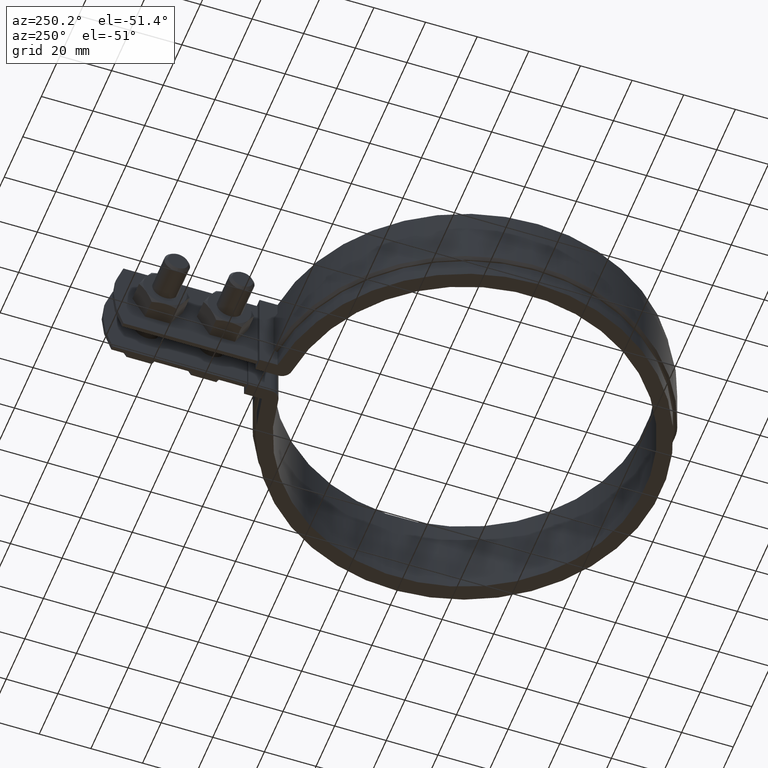
[diagram: clean part render]
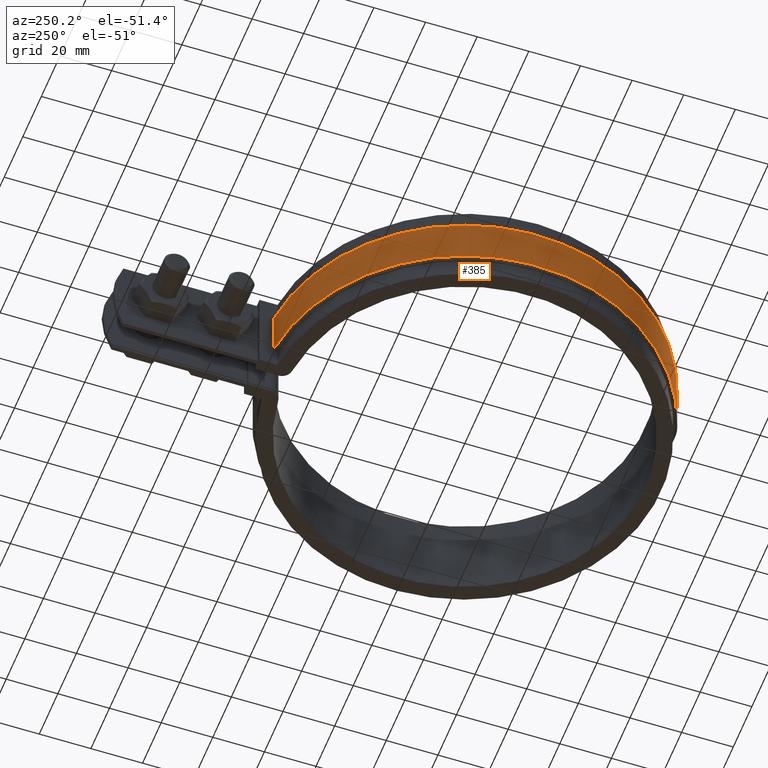
[diagram: same view with one face highlighted and labeled with its STEP entity id]
A machine part, auxiliary view. The second image highlights one B-rep face of the part: STEP entity #385.
In plain terms, the highlighted cylindrical surface (partial cylindrical patch) has radius 77.5 mm, axis along (0, 0, -1).
Its self-contained STEP definition (entity closure, byte-faithful):
#385 = ADVANCED_FACE( '', ( #626 ), #627, .T. );
#626 = FACE_OUTER_BOUND( '', #1712, .T. );
#627 = CYLINDRICAL_SURFACE( '', #1713, 77.5000000000000 );
#1712 = EDGE_LOOP( '', ( #3983, #3984, #3985, #3986 ) );
#1713 = AXIS2_PLACEMENT_3D( '', #3987, #3988, #3989 );
#3983 = ORIENTED_EDGE( '', *, *, #4828, .T. );
#3984 = ORIENTED_EDGE( '', *, *, #4778, .T. );
#3985 = ORIENTED_EDGE( '', *, *, #4742, .F. );
#3986 = ORIENTED_EDGE( '', *, *, #4769, .T. );
#3987 = CARTESIAN_POINT( '', ( 0.000000000000000, 0.000000000000000, -26.0000000000000 ) );
#3988 = DIRECTION( '', ( 0.000000000000000, 0.000000000000000, -1.00000000000000 ) );
#3989 = DIRECTION( '', ( 0.306098023515345, 0.952000000000000, 0.000000000000000 ) );
#4742 = EDGE_CURVE( '', #5228, #5230, #5231, .T. );
#4769 = EDGE_CURVE( '', #5228, #5278, #5280, .F. );
#4778 = EDGE_CURVE( '', #5289, #5230, #5293, .T. );
#4828 = EDGE_CURVE( '', #5278, #5289, #5368, .T. );
#5228 = VERTEX_POINT( '', #7610 );
#5230 = VERTEX_POINT( '', #7615 );
#5231 = LINE( '', #7616, #7617 );
#5278 = VERTEX_POINT( '', #7688 );
#5280 = CIRCLE( '', #7691, 77.5000000000000 );
#5289 = VERTEX_POINT( '', #7703 );
#5293 = CIRCLE( '', #7708, 77.5000000000000 );
#5368 = LINE( '', #7916, #7917 );
#7610 = CARTESIAN_POINT( '', ( -8.40000000000000, 77.0434293110061, -25.0000000000000 ) );
#7615 = CARTESIAN_POINT( '', ( -8.40000000000000, 77.0434293110061, -7.00000000000000 ) );
#7616 = CARTESIAN_POINT( '', ( -8.40000000000000, 77.0434293110061, -26.0000000000000 ) );
#7617 = VECTOR( '', #8557, 1000.00000000000 );
#7688 = CARTESIAN_POINT( '', ( -23.7225968224392, -73.7800000000000, -25.0000000000000 ) );
#7691 = AXIS2_PLACEMENT_3D( '', #8601, #8602, #8603 );
#7703 = CARTESIAN_POINT( '', ( -23.7225968224392, -73.7800000000000, -7.00000000000000 ) );
#7708 = AXIS2_PLACEMENT_3D( '', #8620, #8621, #8622 );
#7916 = CARTESIAN_POINT( '', ( -23.7225968224392, -73.7800000000000, -26.0000000000000 ) );
#7917 = VECTOR( '', #8710, 1000.00000000000 );
#8557 = DIRECTION( '', ( 0.000000000000000, 0.000000000000000, 1.00000000000000 ) );
#8601 = CARTESIAN_POINT( '', ( 0.000000000000000, 0.000000000000000, -25.0000000000000 ) );
#8602 = DIRECTION( '', ( 0.000000000000000, 0.000000000000000, -1.00000000000000 ) );
#8603 = DIRECTION( '', ( -1.00000000000000, 0.000000000000000, 0.000000000000000 ) );
#8620 = CARTESIAN_POINT( '', ( 0.000000000000000, 0.000000000000000, -7.00000000000000 ) );
#8621 = DIRECTION( '', ( 0.000000000000000, 0.000000000000000, -1.00000000000000 ) );
#8622 = DIRECTION( '', ( -1.00000000000000, 0.000000000000000, 0.000000000000000 ) );
#8710 = DIRECTION( '', ( 0.000000000000000, 0.000000000000000, 1.00000000000000 ) );